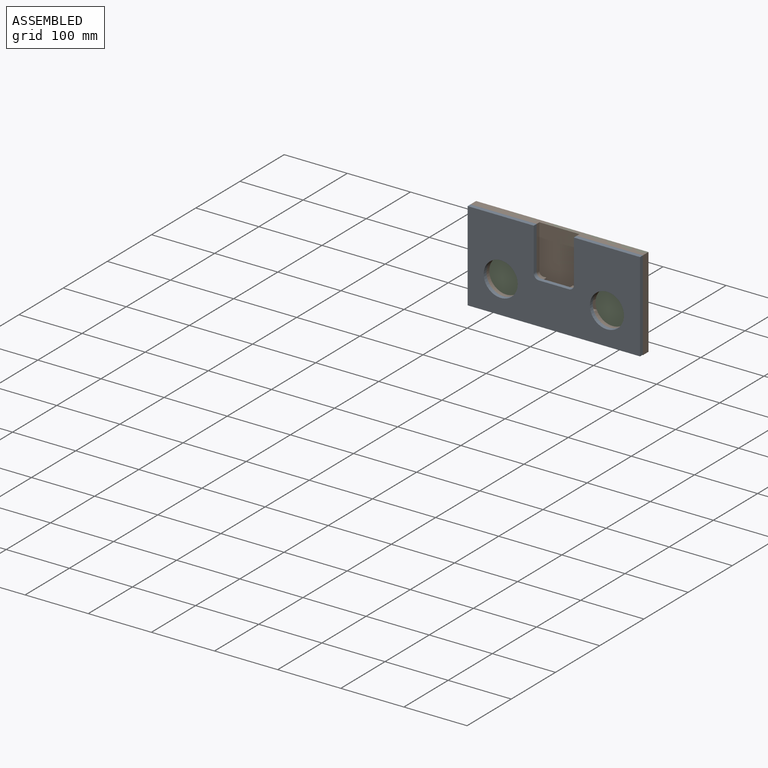
[diagram: assembled view]
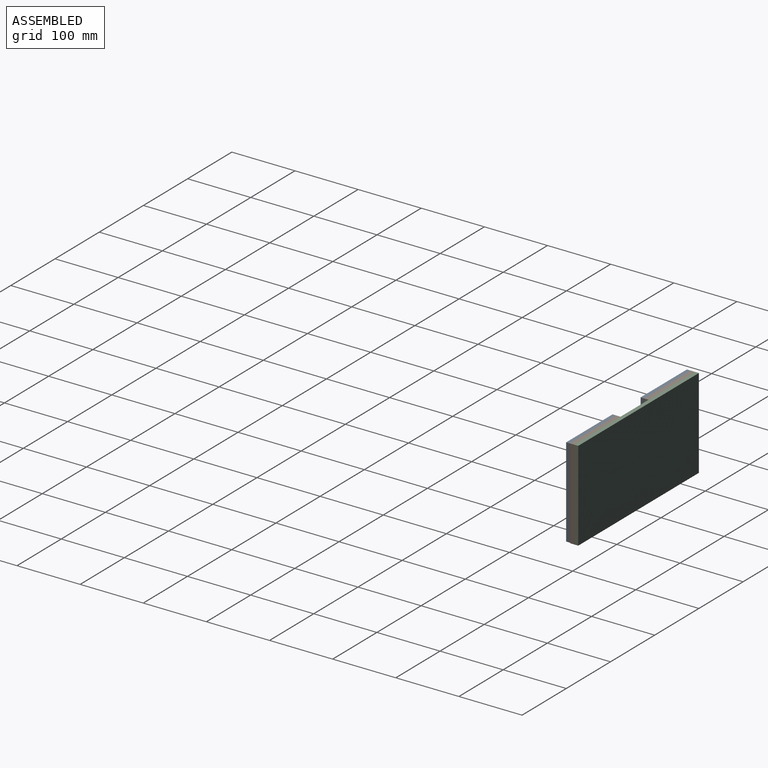
[diagram: assembled view, second angle]
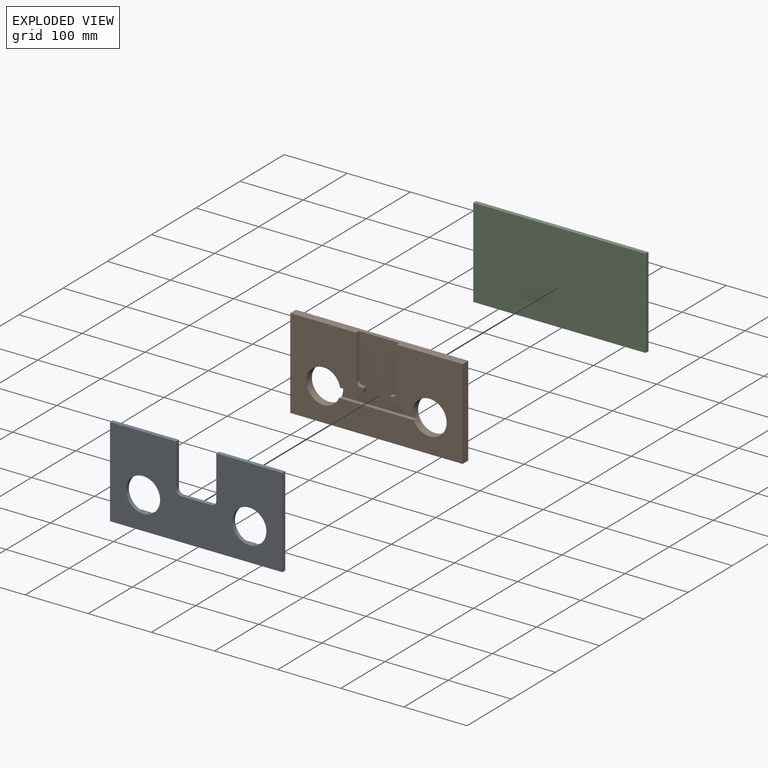
[diagram: exploded view]
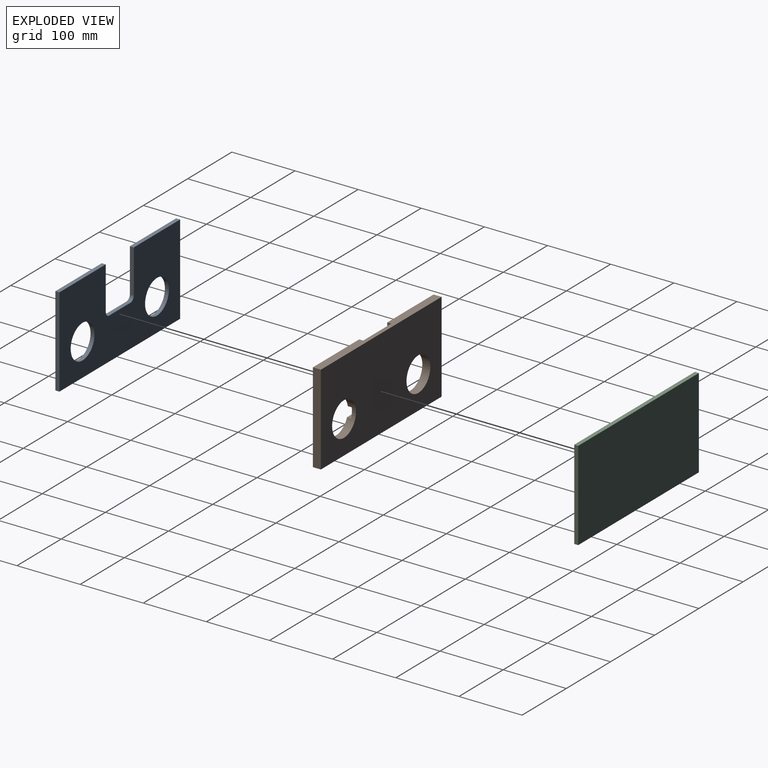
[diagram: exploded view, second angle]
ASSEMBLY  parts=3 mates=2
PART A: 14 faces, bbox 273.1x6.4x142.1 mm
  f0: plane 104.78x6.35mm, normal (0,0,1), area 665.3mm2, adj f1,f11,f12,f13
  f1: plane 68.33x6.35mm, normal (-1,0,0), area 433.9mm2, adj f0,f2,f12,f13
  f2: cylinder r=7.87mm len=7.87mm, axis (0,1,0), area 78.5mm2, adj f1,f3,f12,f13
  f3: plane 47.75x6.35mm, normal (0,0,1), area 303.2mm2, adj f2,f4,f12,f13
  f4: cylinder r=7.87mm len=7.87mm, axis (0,1,0), area 78.5mm2, adj f3,f5,f12,f13
  f5: plane 68.33x6.35mm, normal (1,0,0), area 433.9mm2, adj f4,f6,f12,f13
  f6: plane 104.78x6.35mm, normal (0,0,1), area 665.3mm2, adj f5,f7,f12,f13
  f7: plane 142.11x6.35mm, normal (-1,0,0), area 902.4mm2, adj f6,f8,f12,f13
  f8: plane 273.05x6.35mm, normal (0,0,-1), area 1733.9mm2, adj f7,f11,f12,f13
  f9: cylinder r=26.99mm len=53.98mm, axis (0,1,0), area 1076.8mm2, adj f12,f13
  f10: cylinder r=26.99mm len=53.98mm, axis (0,1,0), area 1076.8mm2, adj f12,f13
  f11: plane 142.11x6.35mm, normal (1,0,0), area 902.4mm2, adj f0,f8,f12,f13
  f12: plane 273.05x142.11mm, normal (0,-1,0), area 29415.7mm2, adj f0,f1,f2,f3,f4,f5,f6,f7
  f13: plane 273.05x142.11mm, normal (0,1,0), area 29415.7mm2, adj f0,f1,f2,f3,f4,f5,f6,f7
PART B: 22 faces, bbox 273.1x12.7x142.9 mm
  f0: plane 69.85x6.35mm, normal (-1,0,0), area 443.5mm2, adj f1,f15,f19,f21
  f1: cylinder r=6.35mm len=6.35mm, axis (0,1,0), area 63.3mm2, adj f0,f2,f19,f21
  f2: plane 6.35x3.98mm, normal (0,0,1), area 25.3mm2, adj f1,f3,f19,f21
  f3: plane 6.35x3.12mm, normal (-1,0,0), area 19.8mm2, adj f2,f4,f19,f21
  f4: cylinder r=6.35mm len=6.35mm, axis (0,1,0), area 63.3mm2, adj f3,f5,f19,f21
  f5: plane 29.82x6.35mm, normal (0,0,-1), area 189.3mm2, adj f4,f6,f19,f21
  f6: cylinder r=26.99mm len=53.98mm, axis (0,1,0), area 2055.1mm2, adj f5,f7,f19,f20,f21
  f7: plane 118.45x6.35mm, normal (0,0,1), area 752.1mm2, adj f6,f8,f19,f21
  f8: cylinder r=26.99mm len=53.98mm, axis (0,1,0), area 2055.1mm2, adj f7,f9,f19,f20,f21
  f9: plane 30.93x6.35mm, normal (0,0,-1), area 196.4mm2, adj f8,f10,f19,f21
  f10: cylinder r=6.35mm len=6.35mm, axis (0,1,0), area 63.3mm2, adj f9,f11,f19,f21
  f11: plane 6.35x3.12mm, normal (1,0,0), area 19.8mm2, adj f10,f12,f19,f21
  f12: plane 6.35x5.1mm, normal (0,0,1), area 32.4mm2, adj f11,f13,f19,f21
  f13: cylinder r=6.35mm len=6.35mm, axis (0,1,0), area 63.3mm2, adj f12,f14,f19,f21
  f14: plane 69.85x6.35mm, normal (1,0,0), area 443.5mm2, adj f13,f15,f19,f21
  f15: plane 273.05x12.7mm, normal (0,0,1), area 3064.5mm2, adj f0,f14,f16,f18,f19,f20,f21
  f16: plane 142.88x12.7mm, normal (-1,0,0), area 1814.5mm2, adj f15,f17,f19,f20
  f17: plane 273.05x12.7mm, normal (0,0,-1), area 3467.7mm2, adj f16,f18,f19,f20
  f18: plane 142.88x12.7mm, normal (1,0,0), area 1814.5mm2, adj f15,f17,f19,f20
  f19: plane 273.05x142.88mm, normal (0,-1,0), area 27450.4mm2, adj f0,f1,f2,f3,f4,f5,f6,f7
  f20: plane 273.05x142.88mm, normal (0,1,0), area 34435.8mm2, adj f6,f8,f15,f16,f17,f18
  f21: plane 118.45x100.86mm, normal (0,-1,0), area 6985.4mm2, adj f0,f1,f2,f3,f4,f5,f6,f7
PART C: 6 faces, bbox 273.1x6.4x142.1 mm
  f0: plane 273.05x6.35mm, normal (0,0,1), area 1733.9mm2, adj f1,f3,f4,f5
  f1: plane 142.11x6.35mm, normal (-1,0,0), area 902.4mm2, adj f0,f2,f4,f5
  f2: plane 273.05x6.35mm, normal (0,0,-1), area 1733.9mm2, adj f1,f3,f4,f5
  f3: plane 142.11x6.35mm, normal (1,0,0), area 902.4mm2, adj f0,f2,f4,f5
  f4: plane 273.05x142.11mm, normal (0,-1,0), area 38804mm2, adj f0,f1,f2,f3
  f5: plane 273.05x142.11mm, normal (0,1,0), area 38804mm2, adj f0,f1,f2,f3
PLACE A t=(-96.34,-45.69,-8.43)mm
PLACE B t=(-96.34,-32.99,-8.43)mm
PLACE C t=(-96.34,-32.99,-8.43)mm
MATE fastened B.f19 <-> A.f13  axis (0,-1,0) through (40.18,-45.69,67.77)mm
MATE fastened C.f5 <-> B.f20  axis (0,1,0) through (40.18,-32.99,67.77)mm
